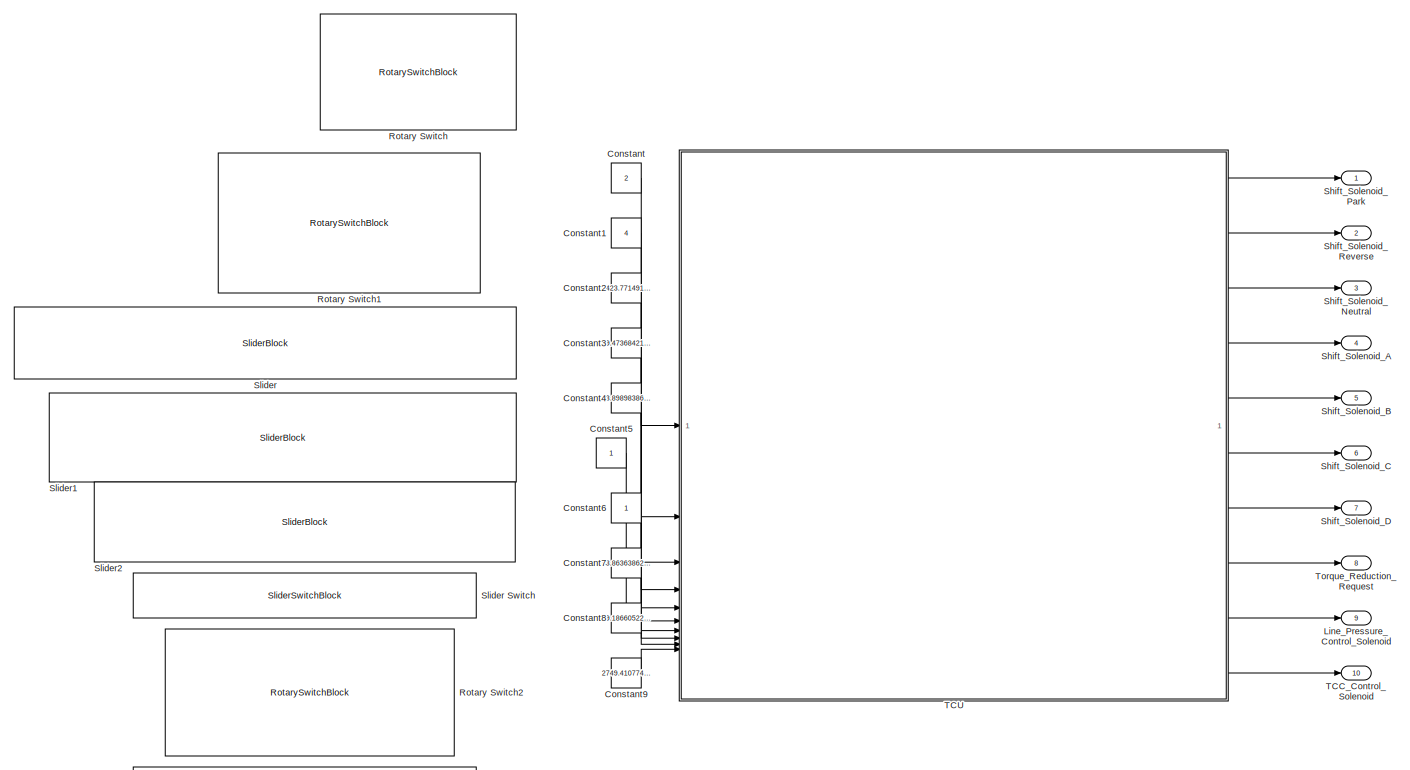
[diagram: root canvas - part 1/2, full width, middle band]
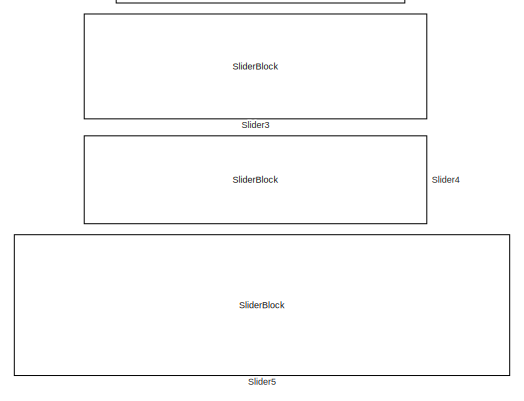
[diagram: root canvas - part 2/2, bottom left region]
MODEL slx_0d353a755c9e
KIND model
CONFIG AbsTol = auto
CONFIG EnableMultiTasking = off
CONFIG FixedStep = auto
CONFIG MaxStep = auto
CONFIG MinStep = auto
CONFIG RelTol = 1e-3
CONFIG SampleTimeConstraint = Unconstrained
CONFIG SolverName = FixedStepDiscrete
CONFIG StartTime = 0.0
CONFIG StopTime = inf
BLOCK [Constant] Constant
  Value = 2
BLOCK [Constant] Constant1
  Value = 4
BLOCK [Constant] Constant2
  Value = 2423.771491213617
BLOCK [Constant] Constant3
  Value = 29.47368421052631
BLOCK [Constant] Constant4
  Value = 43.89898386623491
BLOCK [Constant] Constant5
  OutDataTypeStr = boolean
BLOCK [Constant] Constant6
BLOCK [Constant] Constant7
  Value = 83.86363862441284
BLOCK [Constant] Constant8
  Value = 79.18660522874541
BLOCK [Constant] Constant9
  Value = 2749.410774622657
BLOCK [Outport] Line_Pressure_Control_Solenoid
  Port = 9
BLOCK [RotarySwitchBlock] Rotary Switch
BLOCK [RotarySwitchBlock] Rotary Switch1
BLOCK [RotarySwitchBlock] Rotary Switch2
BLOCK [Outport] Shift_Solenoid_A
  Port = 4
BLOCK [Outport] Shift_Solenoid_B
  Port = 5
BLOCK [Outport] Shift_Solenoid_C
  Port = 6
BLOCK [Outport] Shift_Solenoid_D
  Port = 7
BLOCK [Outport] Shift_Solenoid_Neutral
  Port = 3
BLOCK [Outport] Shift_Solenoid_Park
BLOCK [Outport] Shift_Solenoid_Reverse
  Port = 2
BLOCK [SliderBlock] Slider
  ScaleMax = 8000
  TickInterval = 500
BLOCK [SliderSwitchBlock] Slider Switch
BLOCK [SliderBlock] Slider1
  ScaleMax = 200
  TickInterval = 10
BLOCK [SliderBlock] Slider2
  TickInterval = 10
BLOCK [SliderBlock] Slider3
  ScaleMax = 150
  ScaleMin = -40
  TickInterval = 20
BLOCK [SliderBlock] Slider4
  ScaleMax = 400
  ScaleMin = -50
  TickInterval = 50
BLOCK [SliderBlock] Slider5
  ScaleMax = 7000
  TickInterval = 500
BLOCK [Outport] TCC_Control_Solenoid
  Port = 10
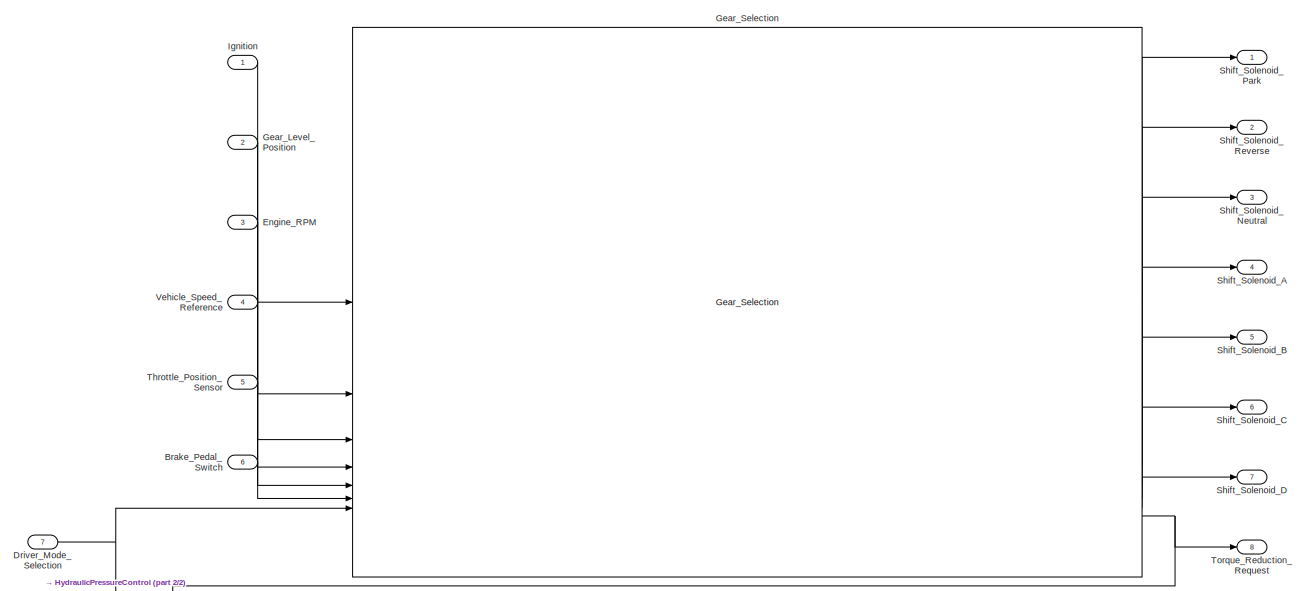
[diagram: TCU - part 1/2, full width, top band]
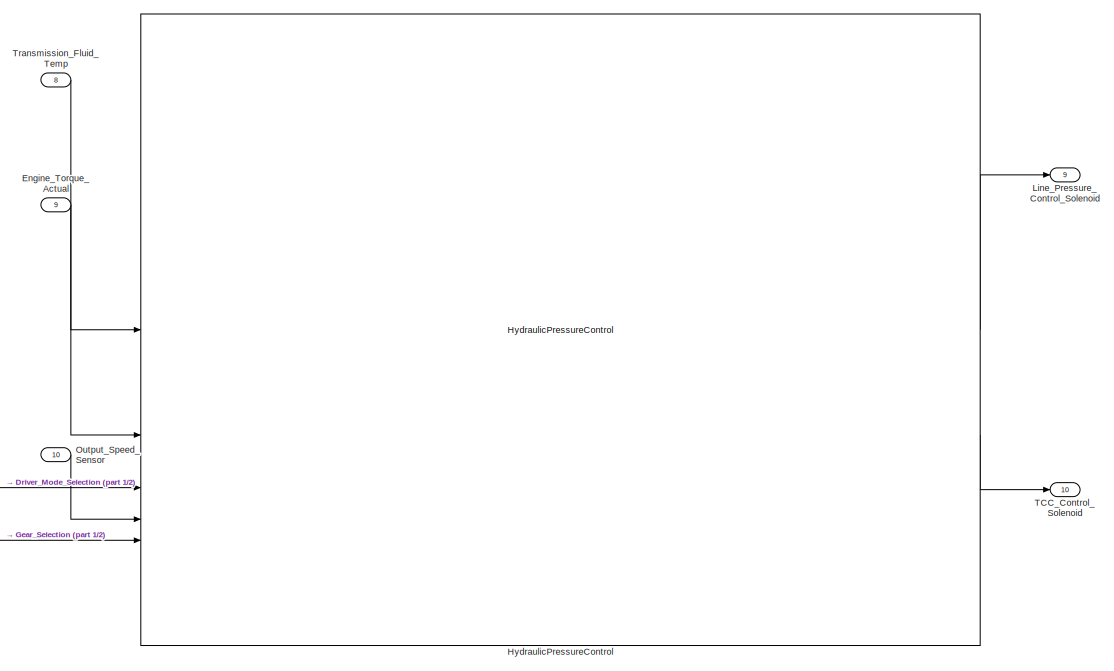
[diagram: TCU - part 2/2, full width, bottom band]
BLOCK [SubSystem] TCU
  RTWFcnNameOpts = Use subsystem name
  RTWFileNameOpts = Use subsystem name
  RTWSystemCode = Reusable function
  TreatAsAtomicUnit = on
BLOCK [Inport] TCU/Brake_Pedal_Switch
  OutDataTypeStr = boolean
  Port = 6
  PortDimensions = 1
  VarSizeSig = No
BLOCK [Inport] TCU/Driver_Mode_Selection
  OutDataTypeStr = double
  Port = 7
  PortDimensions = 1
  SignalType = real
  VarSizeSig = No
BLOCK [Inport] TCU/Engine_RPM
  OutDataTypeStr = double
  Port = 3
  PortDimensions = 1
  SignalType = real
  VarSizeSig = No
BLOCK [Inport] TCU/Engine_Torque_Actual
  OutDataTypeStr = double
  Port = 9
  PortDimensions = 1
  SignalType = real
  VarSizeSig = No
BLOCK [Inport] TCU/Gear_Level_Position
  OutDataTypeStr = double
  Port = 2
  PortDimensions = 1
  SignalType = real
  VarSizeSig = No
BLOCK [Reference] TCU/Gear_Selection  REF=TCU_GS/Gear_Selection
  SourceBlock = TCU_GS/Gear_Selection
  SourceType = SubSystem
BLOCK [Reference] TCU/HydraulicPressureControl  REF=TCU_HPC/HydraulicPressureControl
  SourceBlock = TCU_HPC/HydraulicPressureControl
  SourceType = SubSystem
BLOCK [Inport] TCU/Ignition
  OutDataTypeStr = double
  PortDimensions = 1
  VarSizeSig = No
BLOCK [Outport] TCU/Line_Pressure_Control_Solenoid
  OutDataTypeStr = double
  Port = 9
  PortDimensions = 1
  SignalType = real
  VarSizeSig = No
BLOCK [Inport] TCU/Output_Speed_Sensor
  OutDataTypeStr = double
  Port = 10
  PortDimensions = 1
  SignalType = real
  VarSizeSig = No
BLOCK [Outport] TCU/Shift_Solenoid_A
  OutDataTypeStr = boolean
  Port = 4
  PortDimensions = 1
  VarSizeSig = No
BLOCK [Outport] TCU/Shift_Solenoid_B
  OutDataTypeStr = boolean
  Port = 5
  PortDimensions = 1
  VarSizeSig = No
BLOCK [Outport] TCU/Shift_Solenoid_C
  OutDataTypeStr = boolean
  Port = 6
  PortDimensions = 1
  VarSizeSig = No
BLOCK [Outport] TCU/Shift_Solenoid_D
  OutDataTypeStr = boolean
  Port = 7
  PortDimensions = 1
  VarSizeSig = No
BLOCK [Outport] TCU/Shift_Solenoid_Neutral
  OutDataTypeStr = boolean
  Port = 3
  PortDimensions = 1
  VarSizeSig = No
BLOCK [Outport] TCU/Shift_Solenoid_Park
  OutDataTypeStr = boolean
  PortDimensions = 1
  VarSizeSig = No
BLOCK [Outport] TCU/Shift_Solenoid_Reverse
  OutDataTypeStr = boolean
  Port = 2
  PortDimensions = 1
  VarSizeSig = No
BLOCK [Outport] TCU/TCC_Control_Solenoid
  OutDataTypeStr = double
  Port = 10
  PortDimensions = 1
  SignalType = real
  VarSizeSig = No
BLOCK [Inport] TCU/Throttle_Position_Sensor
  OutDataTypeStr = double
  Port = 5
  PortDimensions = 1
  SignalType = real
  VarSizeSig = No
BLOCK [Outport] TCU/Torque_Reduction_Request
  OutDataTypeStr = double
  Port = 8
  PortDimensions = 1
  SignalType = real
  VarSizeSig = No
BLOCK [Inport] TCU/Transmission_Fluid_Temp
  OutDataTypeStr = double
  Port = 8
  PortDimensions = 1
  SignalType = real
  VarSizeSig = No
BLOCK [Inport] TCU/Vehicle_Speed_Reference
  OutDataTypeStr = double
  Port = 4
  PortDimensions = 1
  SignalType = real
  VarSizeSig = No
BLOCK [Outport] Torque_Reduction_Request
  Port = 8
LINE Constant1:1 -> TCU:2
LINE Constant2:1 -> TCU:3
LINE Constant3:1 -> TCU:4
LINE Constant4:1 -> TCU:5
LINE Constant5:1 -> TCU:6
LINE Constant6:1 -> TCU:7
LINE Constant7:1 -> TCU:8
LINE Constant8:1 -> TCU:9
LINE Constant9:1 -> TCU:10
LINE Constant:1 -> TCU:1
LINE TCU/Brake_Pedal_Switch:1 -> TCU/Gear_Selection:6
NET TCU/Driver_Mode_Selection:1 -> TCU/Gear_Selection:7, TCU/HydraulicPressureControl:3
LINE TCU/Engine_RPM:1 -> TCU/Gear_Selection:3
LINE TCU/Engine_Torque_Actual:1 -> TCU/HydraulicPressureControl:2
LINE TCU/Gear_Level_Position:1 -> TCU/Gear_Selection:2
LINE TCU/Gear_Selection:1 -> TCU/Shift_Solenoid_Park:1
LINE TCU/Gear_Selection:2 -> TCU/Shift_Solenoid_Reverse:1
LINE TCU/Gear_Selection:3 -> TCU/Shift_Solenoid_Neutral:1
LINE TCU/Gear_Selection:4 -> TCU/Shift_Solenoid_A:1
LINE TCU/Gear_Selection:5 -> TCU/Shift_Solenoid_B:1
LINE TCU/Gear_Selection:6 -> TCU/Shift_Solenoid_C:1
LINE TCU/Gear_Selection:7 -> TCU/Shift_Solenoid_D:1
NET TCU/Gear_Selection:8 -> TCU/HydraulicPressureControl:5, TCU/Torque_Reduction_Request:1
LINE TCU/HydraulicPressureControl:1 -> TCU/Line_Pressure_Control_Solenoid:1
LINE TCU/HydraulicPressureControl:2 -> TCU/TCC_Control_Solenoid:1
LINE TCU/Ignition:1 -> TCU/Gear_Selection:1
LINE TCU/Output_Speed_Sensor:1 -> TCU/HydraulicPressureControl:4
LINE TCU/Throttle_Position_Sensor:1 -> TCU/Gear_Selection:5
LINE TCU/Transmission_Fluid_Temp:1 -> TCU/HydraulicPressureControl:1
LINE TCU/Vehicle_Speed_Reference:1 -> TCU/Gear_Selection:4
LINE TCU:1 -> Shift_Solenoid_Park:1
LINE TCU:10 -> TCC_Control_Solenoid:1
LINE TCU:2 -> Shift_Solenoid_Reverse:1
LINE TCU:3 -> Shift_Solenoid_Neutral:1
LINE TCU:4 -> Shift_Solenoid_A:1
LINE TCU:5 -> Shift_Solenoid_B:1
LINE TCU:6 -> Shift_Solenoid_C:1
LINE TCU:7 -> Shift_Solenoid_D:1
LINE TCU:8 -> Torque_Reduction_Request:1
LINE TCU:9 -> Line_Pressure_Control_Solenoid:1
note: NET lines group one-source signal fan-out (src -> all destinations, sorted); 1:1 wires keep LINE
